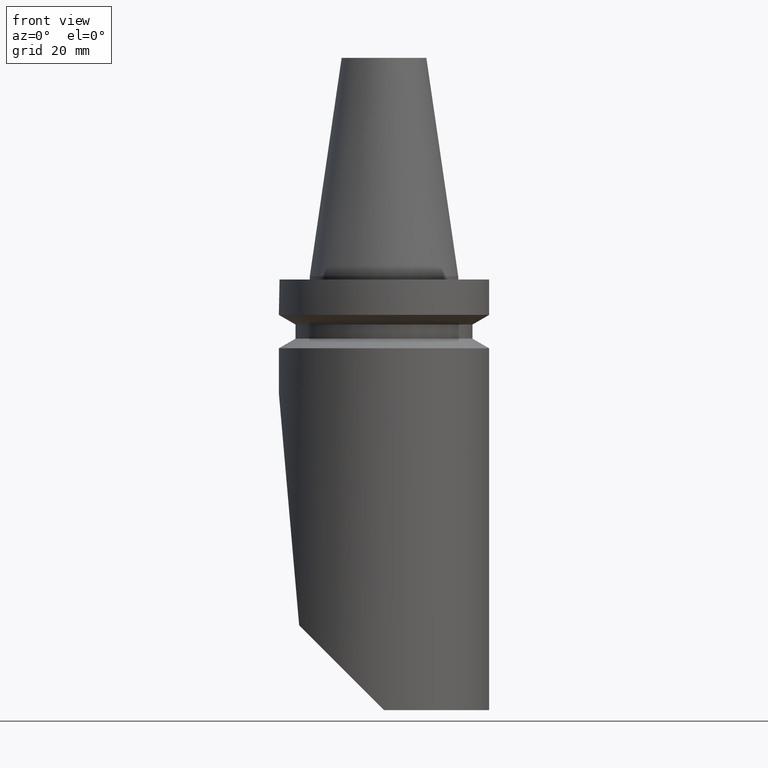
[diagram: clean part render]
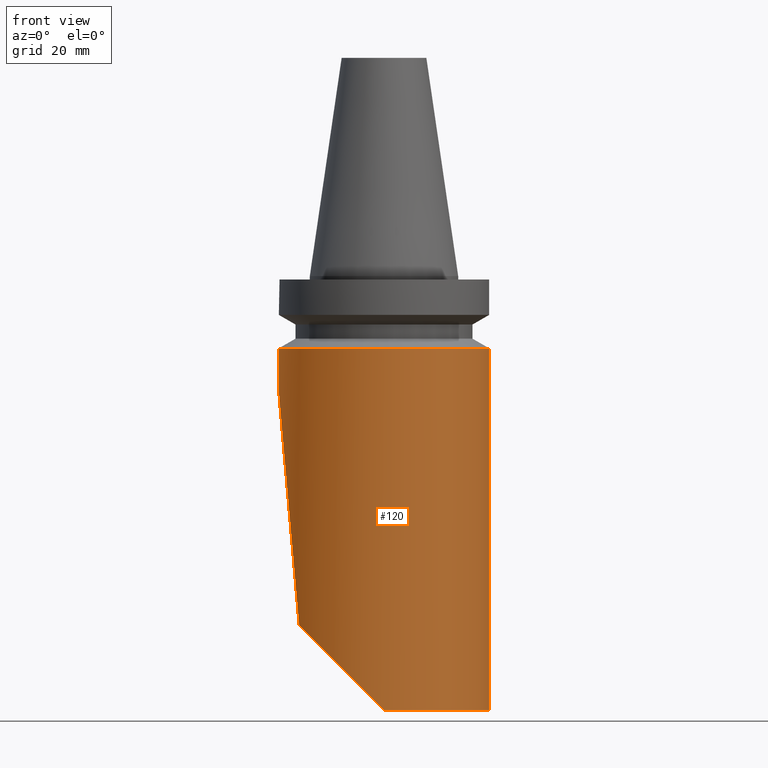
[diagram: same view with one face highlighted and labeled with its STEP entity id]
A machine part, front view. The second image highlights one B-rep face of the part: STEP entity #120.
In plain terms, the highlighted cylindrical surface (bore or boss wall) has radius 31.5 mm, axis along (-0, 0, 1).
Its self-contained STEP definition (entity closure, byte-faithful):
#93=EDGE_CURVE('240[2]',#260,#261,#262,.T.);
#95=EDGE_CURVE('240[2]',#264,#265,#266,.T.);
#97=EDGE_CURVE('240[2]',#268,#269,#270,.T.);
#120=ADVANCED_FACE('240[2]',(#304,#305),#306,.T.);
#124=EDGE_CURVE('240[2]',#269,#264,#311,.T.);
#137=EDGE_CURVE('240[2]',#261,#268,#328,.T.);
#157=EDGE_CURVE('240[2]',#265,#260,#355,.T.);
#230=EDGE_CURVE('240[2]',#449,#449,#450,.T.);
#260=VERTEX_POINT('',#486);
#261=VERTEX_POINT('',#487);
#262=LINE('',#488,#489);
#264=VERTEX_POINT('',#492);
#265=VERTEX_POINT('',#493);
#266=ELLIPSE('',#494,361.421967366517,31.5);
#268=VERTEX_POINT('',#497);
#269=VERTEX_POINT('',#498);
#270=CIRCLE('',#499,31.5);
#304=FACE_BOUND('',#553,.T.);
#305=FACE_BOUND('',#554,.T.);
#306=CYLINDRICAL_SURFACE('',#555,31.5);
#311=ELLIPSE('',#562,44.5477272147525,31.5);
#328=LINE('',#587,#588);
#355=CIRCLE('',#625,31.5);
#449=VERTEX_POINT('',#756);
#450=CIRCLE('',#757,31.5);
#486=CARTESIAN_POINT('',(31.5,-7.92958802447911E-015,-35.0));
#487=CARTESIAN_POINT('',(31.5000056898272,-8.23575076947025E-015,-40.0));
#488=CARTESIAN_POINT('',(31.4999999979768,-1.37466603200574E-014,-130.0));
#489=VECTOR('',#768,10.0);
#492=CARTESIAN_POINT('',(-25.411823436935,-18.6142211658195,-104.588176569096));
#493=CARTESIAN_POINT('',(-31.5,3.64332422746338E-015,-35.0));
#494=AXIS2_PLACEMENT_3D('',#769,#770,#771);
#497=CARTESIAN_POINT('',(31.4999999979768,-1.37466603200574E-014,-130.0));
#498=CARTESIAN_POINT('',(-6.03177642497103E-009,-31.5,-130.0));
#499=AXIS2_PLACEMENT_3D('',#772,#773,#774);
#553=EDGE_LOOP('',(#803,#804,#805,#806,#807,#808));
#554=EDGE_LOOP('',(#809));
#555=AXIS2_PLACEMENT_3D('',#810,#811,#812);
#562=AXIS2_PLACEMENT_3D('',#816,#817,#818);
#587=CARTESIAN_POINT('',(31.4999999979768,-1.37466603200574E-014,-130.0));
#588=VECTOR('',#835,10.0);
#625=AXIS2_PLACEMENT_3D('',#870,#871,#872);
#756=CARTESIAN_POINT('',(-31.5000000001728,4.46383758291774E-015,-21.6000000000998));
#757=AXIS2_PLACEMENT_3D('',#997,#998,#999);
#768=DIRECTION('',(1.22464679914735E-016,-6.12323399573677E-017,-1.0));
#769=CARTESIAN_POINT('',(4.83792612577309E-014,-2.41896306288654E-014,-395.046647665387));
#770=DIRECTION('',(-0.996194698094444,1.77661247185066E-016,-0.0871557427168117));
#771=DIRECTION('',(0.0871557427168117,-7.70095826192643E-017,-0.996194698094444));
#772=CARTESIAN_POINT('',(1.59204083889156E-014,-7.9602041944578E-015,-130.0));
#773=DIRECTION('',(1.22464679914735E-016,-6.12323399573677E-017,-1.0));
#774=DIRECTION('',(1.0,-1.83697019872103E-016,1.22464679914735E-016));
#803=ORIENTED_EDGE('',*,*,#124,.F.);
#804=ORIENTED_EDGE('',*,*,#97,.F.);
#805=ORIENTED_EDGE('',*,*,#137,.F.);
#806=ORIENTED_EDGE('',*,*,#93,.F.);
#807=ORIENTED_EDGE('',*,*,#157,.F.);
#808=ORIENTED_EDGE('',*,*,#95,.F.);
#809=ORIENTED_EDGE('',*,*,#230,.T.);
#810=CARTESIAN_POINT('',(3.46575044158701E-015,-1.73287522079351E-015,-28.3));
#811=DIRECTION('',(-1.22464679914735E-016,6.12323399573677E-017,1.0));
#812=DIRECTION('',(1.0,-1.83697019872103E-016,1.22464679914735E-016));
#816=CARTESIAN_POINT('',(1.59204083896542E-014,-7.96020419482711E-015,-130.000000006031));
#817=DIRECTION('',(-0.707106781186547,8.65956056235493E-017,-0.707106781186548));
#818=DIRECTION('',(0.707106781186548,-1.73191211247099E-016,-0.707106781186547));
#835=DIRECTION('',(1.22464679914735E-016,-6.12323399573677E-017,-1.0));
#870=CARTESIAN_POINT('',(4.28626379701574E-015,-2.14313189850787E-015,-35.0));
#871=DIRECTION('',(1.22464679914735E-016,-6.12323399573677E-017,-1.0));
#872=DIRECTION('',(1.0,-1.83697019872103E-016,1.22464679914735E-016));
#997=CARTESIAN_POINT('',(2.64523708615828E-015,-1.32261854307914E-015,-21.6));
#998=DIRECTION('',(1.22464679914735E-016,-6.12323399573677E-017,-1.0));
#999=DIRECTION('',(1.0,-1.83697019872103E-016,1.22464679914735E-016));